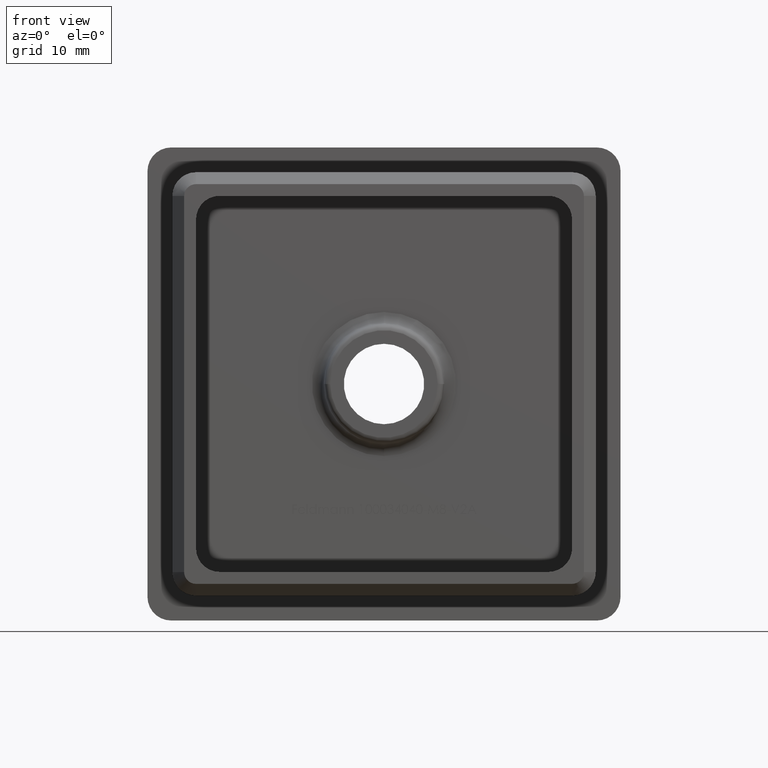
[diagram: clean part render]
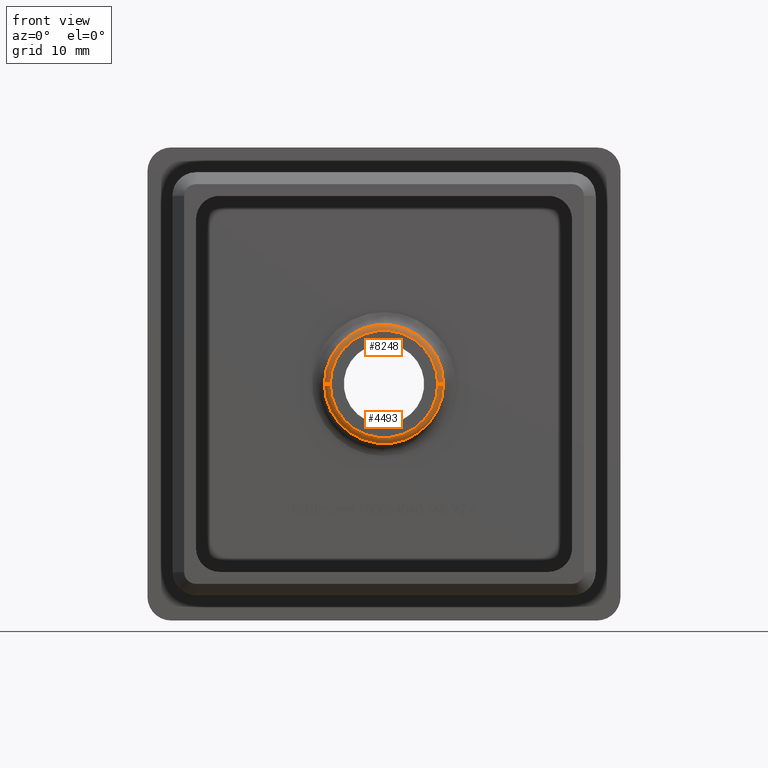
[diagram: same view with one multi-face feature highlighted, each face labeled with its STEP entity id]
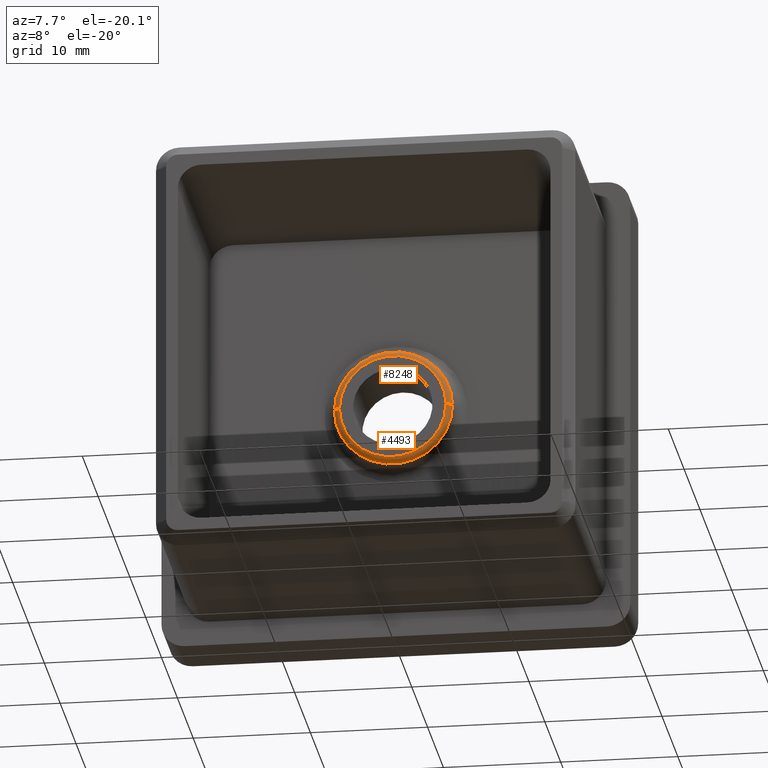
[diagram: same view with one multi-face feature highlighted, each face labeled with its STEP entity id]
A machine part, front view. The highlighted faces form ONE feature: a constant-radius fillet chain: 2 tangent blend faces with common blend radius 0.5 mm. The faces share edges in the B-rep.
A second angle (auxiliary view) of the same feature is appended — it is thin or edge-on in the first view.
Their STEP definitions:
[1] entity #4493 (Torus):
#1119 = DIRECTION ( 'NONE',  ( -1.224646799147353500E-016, 1.000000000000000000, -0.0000000000000000000 ) ) ;
#1436 = CARTESIAN_POINT ( 'NONE',  ( -5.039931762037158000, -1.543577871373825300, 0.0000000000000000000 ) ) ;
#1648 = CARTESIAN_POINT ( 'NONE',  ( 2.449293598294706900E-016, -2.000000000000000400, 0.0000000000000000000 ) ) ;
#1926 = CARTESIAN_POINT ( 'NONE',  ( 4.541834412991284400, -2.000000000000000000, 5.867139638213479300E-016 ) ) ;
#2193 = CARTESIAN_POINT ( 'NONE',  ( 5.039931762037158000, -1.543577871373824000, 6.205925555203900700E-016 ) ) ;
#2697 = DIRECTION ( 'NONE',  ( 1.000000000000000000, 1.290734347618150500E-016, 0.0000000000000000000 ) ) ;
#2755 = CARTESIAN_POINT ( 'NONE',  ( -4.541834412991284400, -2.000000000000000900, 0.0000000000000000000 ) ) ;
#2879 = AXIS2_PLACEMENT_3D ( 'NONE', #6350, #3232, #10634 ) ;
#3232 = DIRECTION ( 'NONE',  ( -1.224646799147353200E-016, -1.499759782661857900E-032, 1.000000000000000000 ) ) ;
#3447 = CIRCLE ( 'NONE', #12031, 0.4999999999999995600 ) ;
#3890 = ORIENTED_EDGE ( 'NONE', *, *, #14067, .T. ) ;
#4351 = DIRECTION ( 'NONE',  ( -1.000000000000000000, -9.548583888345160900E-017, 0.0000000000000000000 ) ) ;
#4493 = ADVANCED_FACE ( 'NONE', ( #6395 ), #18168, .T. ) ;
#4666 = CARTESIAN_POINT ( 'NONE',  ( -4.541834412991284400, -1.500000000000001100, 0.0000000000000000000 ) ) ;
#5014 = EDGE_CURVE ( 'NONE', #9212, #13140, #10388, .T. ) ;
#5182 = CIRCLE ( 'NONE', #2879, 0.4999999999999995600 ) ;
#5308 = CARTESIAN_POINT ( 'NONE',  ( 1.836970198721030400E-016, -1.500000000000000400, 0.0000000000000000000 ) ) ;
#6113 = DIRECTION ( 'NONE',  ( -1.000000000000000000, 0.0000000000000000000, 0.0000000000000000000 ) ) ;
#6350 = CARTESIAN_POINT ( 'NONE',  ( 4.541834412991284400, -1.499999999999999800, 5.562142976127074500E-016 ) ) ;
#6395 = FACE_OUTER_BOUND ( 'NONE', #12244, .T. ) ;
#7314 = ORIENTED_EDGE ( 'NONE', *, *, #5014, .F. ) ;
#7467 = CIRCLE ( 'NONE', #18050, 5.039931762037158000 ) ;
#8538 = DIRECTION ( 'NONE',  ( -1.224646799147353500E-016, 1.000000000000000000, -0.0000000000000000000 ) ) ;
#8756 = AXIS2_PLACEMENT_3D ( 'NONE', #1648, #11450, #4351 ) ;
#9212 = VERTEX_POINT ( 'NONE', #2755 ) ;
#9786 = DIRECTION ( 'NONE',  ( -1.000000000000000000, -1.224646799147353500E-016, 0.0000000000000000000 ) ) ;
#10076 = EDGE_CURVE ( 'NONE', #13899, #15099, #7467, .T. ) ;
#10388 = CIRCLE ( 'NONE', #8756, 4.541834412991284400 ) ;
#10634 = DIRECTION ( 'NONE',  ( 1.000000000000000000, 0.0000000000000000000, 1.224646799147353500E-016 ) ) ;
#11450 = DIRECTION ( 'NONE',  ( 1.224646799147353500E-016, -1.000000000000000000, 0.0000000000000000000 ) ) ;
#11698 = ORIENTED_EDGE ( 'NONE', *, *, #17777, .F. ) ;
#12031 = AXIS2_PLACEMENT_3D ( 'NONE', #4666, #14649, #6113 ) ;
#12244 = EDGE_LOOP ( 'NONE', ( #11698, #7314, #3890, #12557 ) ) ;
#12557 = ORIENTED_EDGE ( 'NONE', *, *, #10076, .F. ) ;
#12601 = CARTESIAN_POINT ( 'NONE',  ( 1.890337699412631400E-016, -1.543577871373824600, 0.0000000000000000000 ) ) ;
#13140 = VERTEX_POINT ( 'NONE', #1926 ) ;
#13660 = AXIS2_PLACEMENT_3D ( 'NONE', #5308, #1119, #9786 ) ;
#13899 = VERTEX_POINT ( 'NONE', #2193 ) ;
#14067 = EDGE_CURVE ( 'NONE', #9212, #15099, #3447, .T. ) ;
#14649 = DIRECTION ( 'NONE',  ( 0.0000000000000000000, -0.0000000000000000000, -1.000000000000000000 ) ) ;
#15099 = VERTEX_POINT ( 'NONE', #1436 ) ;
#17777 = EDGE_CURVE ( 'NONE', #13140, #13899, #5182, .T. ) ;
#18050 = AXIS2_PLACEMENT_3D ( 'NONE', #12601, #8538, #2697 ) ;
#18168 = TOROIDAL_SURFACE ( 'NONE', #13660, 4.541834412991284400, 0.5000000000000000000 ) ;
[2] entity #8248 (Torus):
#551 = CARTESIAN_POINT ( 'NONE',  ( 2.449293598294706900E-016, -2.000000000000000400, 0.0000000000000000000 ) ) ;
#701 = AXIS2_PLACEMENT_3D ( 'NONE', #7731, #6181, #9030 ) ;
#774 = ORIENTED_EDGE ( 'NONE', *, *, #6627, .F. ) ;
#1436 = CARTESIAN_POINT ( 'NONE',  ( -5.039931762037158000, -1.543577871373825300, 0.0000000000000000000 ) ) ;
#1926 = CARTESIAN_POINT ( 'NONE',  ( 4.541834412991284400, -2.000000000000000000, 5.867139638213479300E-016 ) ) ;
#2193 = CARTESIAN_POINT ( 'NONE',  ( 5.039931762037158000, -1.543577871373824000, 6.205925555203900700E-016 ) ) ;
#2273 = FACE_OUTER_BOUND ( 'NONE', #15891, .T. ) ;
#2508 = CIRCLE ( 'NONE', #12830, 4.541834412991284400 ) ;
#2755 = CARTESIAN_POINT ( 'NONE',  ( -4.541834412991284400, -2.000000000000000900, 0.0000000000000000000 ) ) ;
#2879 = AXIS2_PLACEMENT_3D ( 'NONE', #6350, #3232, #10634 ) ;
#3006 = ORIENTED_EDGE ( 'NONE', *, *, #17777, .T. ) ;
#3232 = DIRECTION ( 'NONE',  ( -1.224646799147353200E-016, -1.499759782661857900E-032, 1.000000000000000000 ) ) ;
#3447 = CIRCLE ( 'NONE', #12031, 0.4999999999999995600 ) ;
#3881 = DIRECTION ( 'NONE',  ( -1.224646799147353500E-016, 1.000000000000000000, -0.0000000000000000000 ) ) ;
#4666 = CARTESIAN_POINT ( 'NONE',  ( -4.541834412991284400, -1.500000000000001100, 0.0000000000000000000 ) ) ;
#4870 = DIRECTION ( 'NONE',  ( 1.224646799147353500E-016, -1.000000000000000000, 0.0000000000000000000 ) ) ;
#5163 = ORIENTED_EDGE ( 'NONE', *, *, #12221, .F. ) ;
#5182 = CIRCLE ( 'NONE', #2879, 0.4999999999999995600 ) ;
#6113 = DIRECTION ( 'NONE',  ( -1.000000000000000000, 0.0000000000000000000, 0.0000000000000000000 ) ) ;
#6181 = DIRECTION ( 'NONE',  ( -1.224646799147353500E-016, 1.000000000000000000, -0.0000000000000000000 ) ) ;
#6350 = CARTESIAN_POINT ( 'NONE',  ( 4.541834412991284400, -1.499999999999999800, 5.562142976127074500E-016 ) ) ;
#6627 = EDGE_CURVE ( 'NONE', #13140, #9212, #2508, .T. ) ;
#7731 = CARTESIAN_POINT ( 'NONE',  ( 1.836970198721030400E-016, -1.500000000000000400, 0.0000000000000000000 ) ) ;
#8248 = ADVANCED_FACE ( 'NONE', ( #2273 ), #10275, .T. ) ;
#9030 = DIRECTION ( 'NONE',  ( -1.000000000000000000, -1.224646799147353500E-016, 0.0000000000000000000 ) ) ;
#9212 = VERTEX_POINT ( 'NONE', #2755 ) ;
#10275 = TOROIDAL_SURFACE ( 'NONE', #701, 4.541834412991284400, 0.5000000000000000000 ) ;
#10634 = DIRECTION ( 'NONE',  ( 1.000000000000000000, 0.0000000000000000000, 1.224646799147353500E-016 ) ) ;
#11168 = AXIS2_PLACEMENT_3D ( 'NONE', #18006, #3881, #15165 ) ;
#12031 = AXIS2_PLACEMENT_3D ( 'NONE', #4666, #14649, #6113 ) ;
#12221 = EDGE_CURVE ( 'NONE', #15099, #13899, #14592, .T. ) ;
#12830 = AXIS2_PLACEMENT_3D ( 'NONE', #551, #4870, #17631 ) ;
#13140 = VERTEX_POINT ( 'NONE', #1926 ) ;
#13899 = VERTEX_POINT ( 'NONE', #2193 ) ;
#14067 = EDGE_CURVE ( 'NONE', #9212, #15099, #3447, .T. ) ;
#14592 = CIRCLE ( 'NONE', #11168, 5.039931762037158000 ) ;
#14649 = DIRECTION ( 'NONE',  ( 0.0000000000000000000, -0.0000000000000000000, -1.000000000000000000 ) ) ;
#15099 = VERTEX_POINT ( 'NONE', #1436 ) ;
#15165 = DIRECTION ( 'NONE',  ( 1.000000000000000000, 1.290734347618150500E-016, 0.0000000000000000000 ) ) ;
#15213 = ORIENTED_EDGE ( 'NONE', *, *, #14067, .F. ) ;
#15891 = EDGE_LOOP ( 'NONE', ( #774, #3006, #5163, #15213 ) ) ;
#17631 = DIRECTION ( 'NONE',  ( -1.000000000000000000, -9.548583888345160900E-017, 0.0000000000000000000 ) ) ;
#17777 = EDGE_CURVE ( 'NONE', #13140, #13899, #5182, .T. ) ;
#18006 = CARTESIAN_POINT ( 'NONE',  ( 1.890337699412631400E-016, -1.543577871373824600, 0.0000000000000000000 ) ) ;